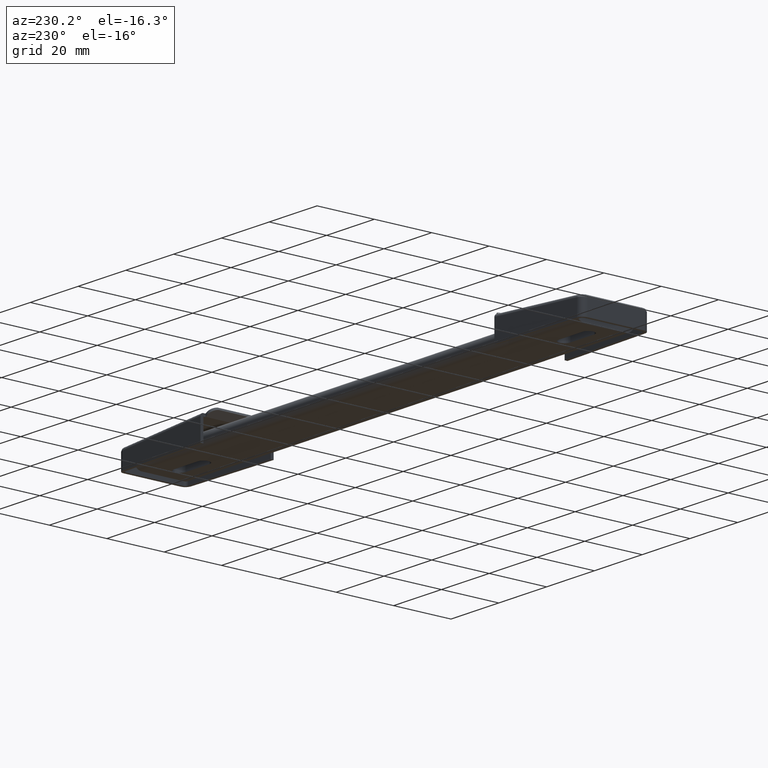
[diagram: clean part render]
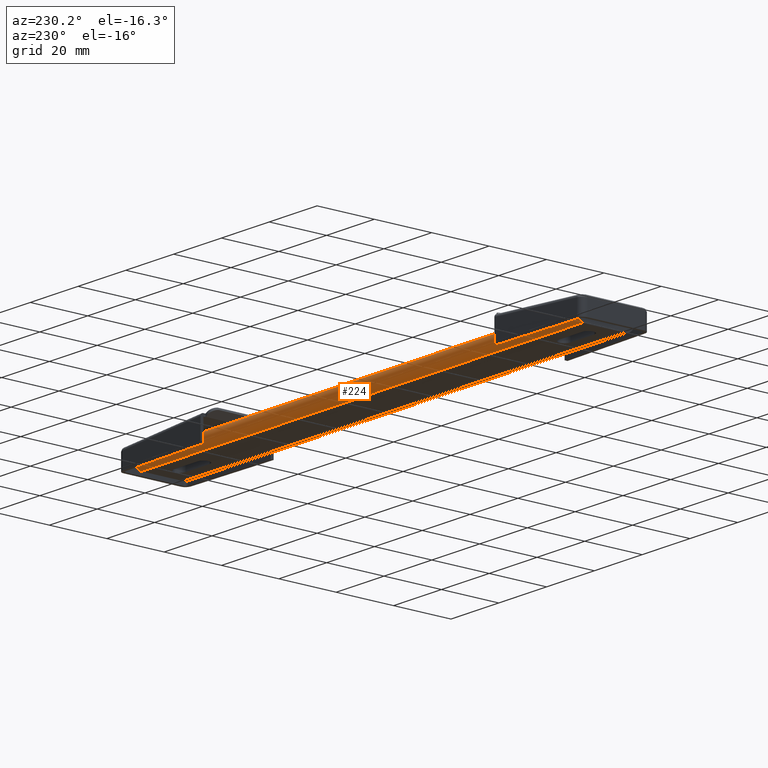
[diagram: same view with one face highlighted and labeled with its STEP entity id]
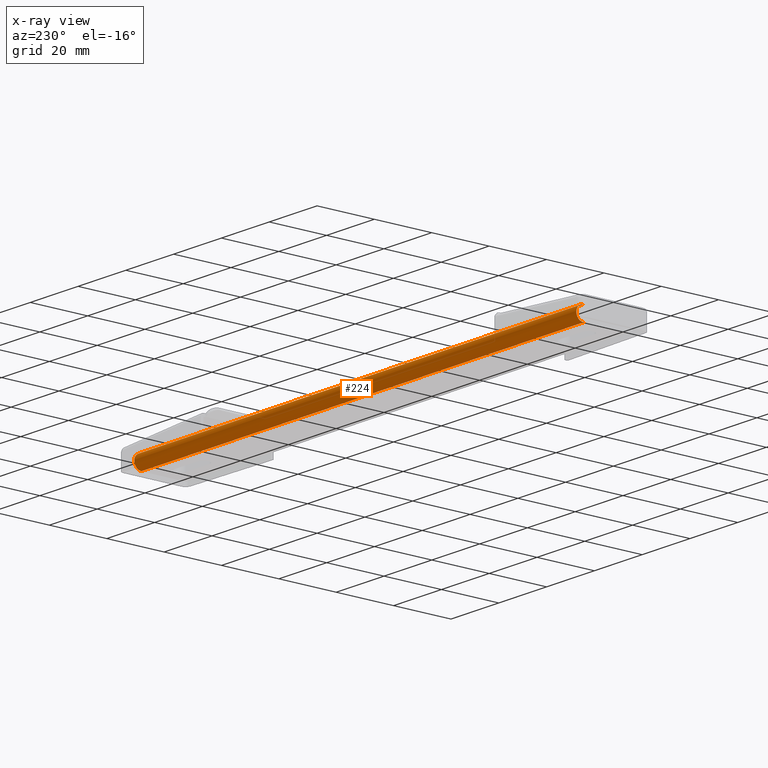
[diagram: x-ray of the same camera — body ghosted, the highlighted face saturated]
A machine part, auxiliary view. The second image highlights one B-rep face of the part: STEP entity #224.
The next image is the same camera in x-ray: the body ghosted, the highlighted face saturated — about 0% of this face is hidden behind the body in this view.
In plain terms, the highlighted cylindrical surface (edge-blend (fillet) strip) has radius 2.5 mm, axis along (-1, 0, 0).
Its self-contained STEP definition (entity closure, byte-faithful):
#224=ADVANCED_FACE('',(#909),#908,.T.);
#908=CYLINDRICAL_SURFACE('',#1465,2.50000000000E+00);
#909=FACE_OUTER_BOUND('',#1466,.T.);
#1462=CARTESIAN_POINT('',(2.25045207694E-15,7.50000000000E+00,2.50000000000E+00));
#1463=DIRECTION('',(-1.00000000000E+00,3.00060276926E-16,-0.00000000000E+00));
#1464=DIRECTION('',(-3.00060276926E-16,-1.00000000000E+00,-0.00000000000E+00));
#1465=AXIS2_PLACEMENT_3D('',#1462,#1463,#1464);
#1466=EDGE_LOOP('',(#1864,#1865,#1866,#1867));
#1864=ORIENTED_EDGE('',*,*,#2104,.F.);
#1865=ORIENTED_EDGE('',*,*,#2089,.F.);
#1866=ORIENTED_EDGE('',*,*,#2112,.F.);
#1867=ORIENTED_EDGE('',*,*,#2096,.F.);
#2089=EDGE_CURVE('',#3193,#3200,#3201,.T.);
#2096=EDGE_CURVE('',#3248,#3249,#3250,.T.);
#2104=EDGE_CURVE('',#3200,#3248,#3304,.T.);
#2112=EDGE_CURVE('',#3249,#3193,#3357,.T.);
#3193=VERTEX_POINT('',#4079);
#3200=VERTEX_POINT('',#4083);
#3201=CIRCLE('',#4087,2.50000000000E+00);
#3248=VERTEX_POINT('',#4114);
#3249=VERTEX_POINT('',#4115);
#3250=CIRCLE('',#4119,2.50000000000E+00);
#3304=LINE('',#4150,#4151);
#3357=LINE('',#4182,#4183);
#4079=CARTESIAN_POINT('',(9.25000000000E+01,7.50000000000E+00,0.00000000000E+00));
#4083=CARTESIAN_POINT('',(9.25000000000E+01,7.50000000000E+00,5.00000000000E+00));
#4084=CARTESIAN_POINT('',(9.25000000000E+01,7.50000000000E+00,2.50000000000E+00));
#4085=DIRECTION('',(1.00000000000E+00,0.00000000000E+00,-0.00000000000E+00));
#4086=DIRECTION('',(-0.00000000000E+00,-0.00000000000E+00,-1.00000000000E+00));
#4087=AXIS2_PLACEMENT_3D('',#4084,#4085,#4086);
#4114=CARTESIAN_POINT('',(-9.25000000000E+01,7.50000000000E+00,5.00000000000E+00));
#4115=CARTESIAN_POINT('',(-9.25000000000E+01,7.50000000000E+00,0.00000000000E+00));
#4116=CARTESIAN_POINT('',(-9.25000000000E+01,7.50000000000E+00,2.50000000000E+00));
#4117=DIRECTION('',(-1.00000000000E+00,5.55111512313E-15,0.00000000000E+00));
#4118=DIRECTION('',(-5.55111512313E-15,-1.00000000000E+00,-0.00000000000E+00));
#4119=AXIS2_PLACEMENT_3D('',#4116,#4117,#4118);
#4150=CARTESIAN_POINT('',(9.25000000000E+01,7.50000000000E+00,5.00000000000E+00));
#4151=VECTOR('',#4152,1.85000000000E+02);
#4152=DIRECTION('',(-1.00000000000E+00,2.97659794710E-16,0.00000000000E+00));
#4182=CARTESIAN_POINT('',(-9.25000000000E+01,7.50000000000E+00,0.00000000000E+00));
#4183=VECTOR('',#4184,1.85000000000E+02);
#4184=DIRECTION('',(1.00000000000E+00,-3.02460759141E-16,0.00000000000E+00));